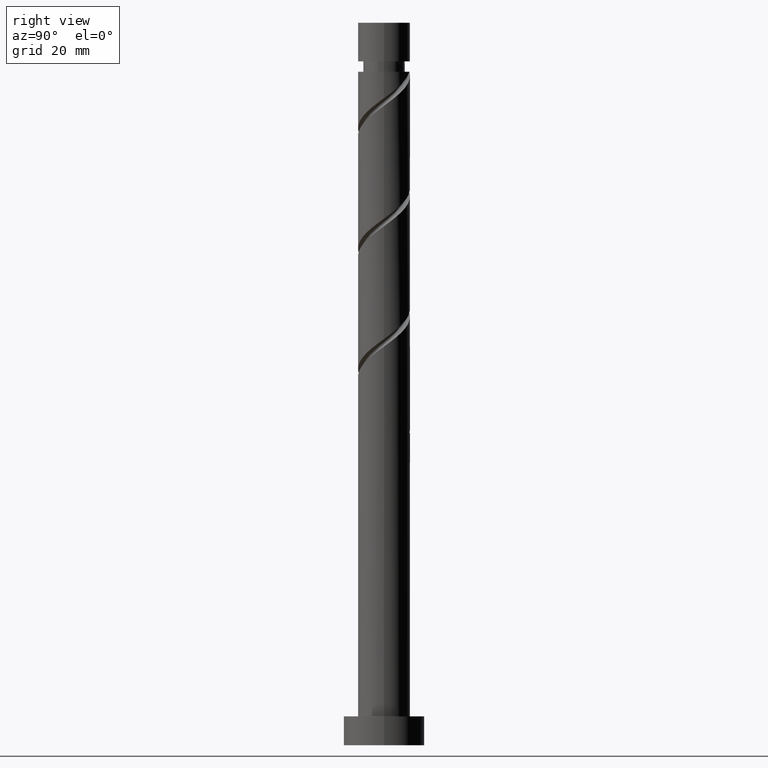
[diagram: clean part render]
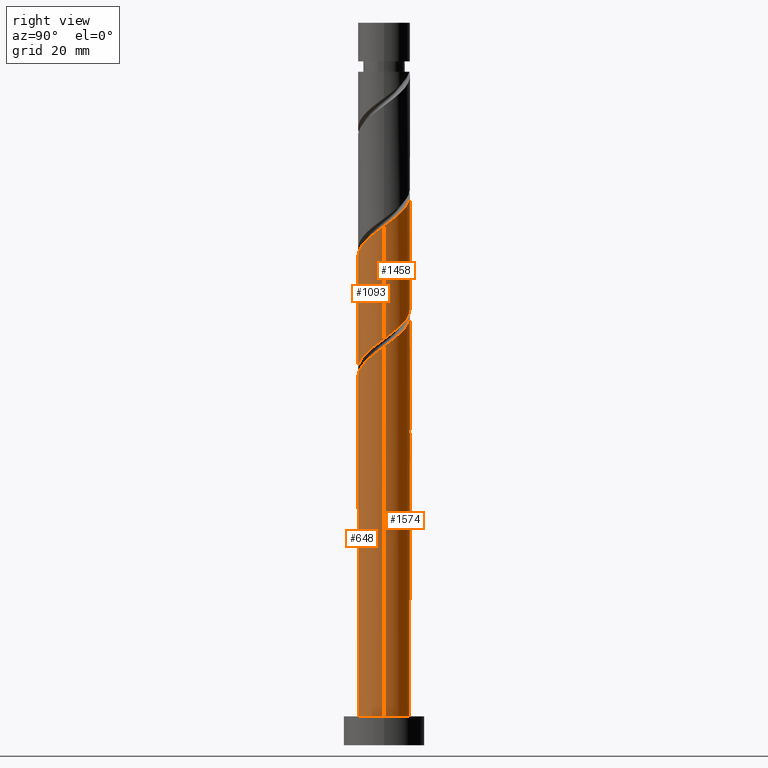
[diagram: same view with one multi-face feature highlighted, each face labeled with its STEP entity id]
A machine part, right view. The highlighted faces form ONE feature: a constant-radius fillet chain: 4 tangent blend faces with common blend radius 4.5 mm. The faces share edges in the B-rep.
Their STEP definitions:
[1] entity #1458 (Cylinder):
#29 = CARTESIAN_POINT ( 'NONE',  ( -4.094119992766323435, 1.867667391381863329, 98.80672177963353420 ) ) ;
#38 = ORIENTED_EDGE ( 'NONE', *, *, #1354, .F. ) ;
#82 = CARTESIAN_POINT ( 'NONE',  ( 1.593964075227163102, 4.268168524479527548, 74.32755511296680595 ) ) ;
#132 = CARTESIAN_POINT ( 'NONE',  ( -4.499999999999999112, 4.647861862793815006E-15, 80.72152422110376335 ) ) ;
#144 = CARTESIAN_POINT ( 'NONE',  ( -4.470880461391601557, 0.5111045880706612810, 99.84838844630017718 ) ) ;
#158 = CARTESIAN_POINT ( 'NONE',  ( -3.041409897620717562, 3.316598533837753049, 77.97338844630017718 ) ) ;
#173 = CARTESIAN_POINT ( 'NONE',  ( 4.500000000000005329, 2.998620556641154609E-15, 89.80858600482991960 ) ) ;
#176 = CARTESIAN_POINT ( 'NONE',  ( 0.8954886933959584905, 4.410000000000001030, 74.84838844630019139 ) ) ;
#229 = CARTESIAN_POINT ( 'NONE',  ( -4.500000000000005329, -1.289406839355696237E-15, 100.2252526714965768 ) ) ;
#243 = LINE ( 'NONE', #959, #1215 ) ;
#253 = CARTESIAN_POINT ( 'NONE',  ( -2.214425302316378463, 3.917438012331664776, 96.72338844630019139 ) ) ;
#260 = CARTESIAN_POINT ( 'NONE',  ( 3.917438012331664776, 2.214425302316378019, 91.51505511296684858 ) ) ;
#276 = CARTESIAN_POINT ( 'NONE',  ( -4.500000000000000000, 0.4522670168666474422, 80.38721964569590739 ) ) ;
#287 = CARTESIAN_POINT ( 'NONE',  ( 2.214425302316377575, 3.917438012331659447, 73.80672177963351999 ) ) ;
#316 = ORIENTED_EDGE ( 'NONE', *, *, #949, .F. ) ;
#321 = CARTESIAN_POINT ( 'NONE',  ( 3.798310538269914272, 2.516112295057646886, 72.24422177963349156 ) ) ;
#335 = CARTESIAN_POINT ( 'NONE',  ( 3.041409897620723335, 3.316598533837756158, 92.55672177963347735 ) ) ;
#338 = FACE_OUTER_BOUND ( 'NONE', #555, .T. ) ;
#352 = AXIS2_PLACEMENT_3D ( 'NONE', #1310, #1205, #1199 ) ;
#358 = DIRECTION ( 'NONE',  ( -0.000000000000000000, -0.000000000000000000, -1.000000000000000000 ) ) ;
#379 = CARTESIAN_POINT ( 'NONE',  ( 4.410000000000006359, 0.8954886933959571582, 90.47338844630019139 ) ) ;
#408 = CARTESIAN_POINT ( 'NONE',  ( -4.410000000000001030, 0.8954886933959577133, 80.05672177963350578 ) ) ;
#425 = VERTEX_POINT ( 'NONE', #229 ) ;
#435 = ORIENTED_EDGE ( 'NONE', *, *, #1389, .T. ) ;
#443 = CARTESIAN_POINT ( 'NONE',  ( 3.316598533837753049, 3.041409897620717562, 72.76505511296684858 ) ) ;
#501 = CARTESIAN_POINT ( 'NONE',  ( 4.500000000000004441, 0.4522670168666463875, 90.14289058023777557 ) ) ;
#504 = CARTESIAN_POINT ( 'NONE',  ( -4.389929447262725937, 1.219222487706074221, 99.32755511296684858 ) ) ;
#523 = CARTESIAN_POINT ( 'NONE',  ( -1.593964075227163768, 4.268168524479535542, 96.20255511296682016 ) ) ;
#541 = CARTESIAN_POINT ( 'NONE',  ( -0.5111045880706599487, 4.470880461391593563, 75.89005511296686279 ) ) ;
#555 = EDGE_LOOP ( 'NONE', ( #316, #435, #38, #1267 ) ) ;
#557 = EDGE_CURVE ( 'NONE', #425, #818, #243, .T. ) ;
#579 = CARTESIAN_POINT ( 'NONE',  ( 4.500000000000000000, 5.510910596163088569E-16, 125.0000000000000000 ) ) ;
#585 = CARTESIAN_POINT ( 'NONE',  ( -3.917438012331659447, 2.214425302316376687, 79.01505511296682016 ) ) ;
#628 = CARTESIAN_POINT ( 'NONE',  ( -0.8954886933959569362, 4.410000000000006359, 95.68172177963350578 ) ) ;
#653 = CARTESIAN_POINT ( 'NONE',  ( 4.389929447262719719, 1.219222487706071112, 71.20255511296682016 ) ) ;
#704 = CARTESIAN_POINT ( 'NONE',  ( -4.499999999999999112, 4.647861862793815006E-15, 80.72152422110376335 ) ) ;
#751 = CARTESIAN_POINT ( 'NONE',  ( 3.566707500183794455, 2.834886529405591826, 92.03588844630014876 ) ) ;
#818 = VERTEX_POINT ( 'NONE', #132 ) ;
#825 = CARTESIAN_POINT ( 'NONE',  ( 2.516112295057652659, 3.798310538269918712, 93.07755511296683437 ) ) ;
#830 = CYLINDRICAL_SURFACE ( 'NONE', #352, 4.500000000000000000 ) ;
#870 = CARTESIAN_POINT ( 'NONE',  ( 4.268168524479535542, 1.593964075227162658, 90.99422177963353420 ) ) ;
#932 = CARTESIAN_POINT ( 'NONE',  ( 4.094119992766318106, 1.867667391381859554, 71.72338844630016297 ) ) ;
#949 = EDGE_CURVE ( 'NONE', #1009, #425, #1201, .T. ) ;
#959 = CARTESIAN_POINT ( 'NONE',  ( -4.500000000000000000, 0.000000000000000000, 125.0000000000000000 ) ) ;
#976 =( BOUNDED_CURVE ( )  B_SPLINE_CURVE ( 2, ( #704, #276, #408, #1293, #585, #1138, #158, #1247, #1257, #1530, #541, #1018, #176, #82, #287, #1055, #443, #321, #932, #653, #1360, #1411, #1131 ),
 .UNSPECIFIED., .F., .T. ) 
 B_SPLINE_CURVE_WITH_KNOTS ( ( 3, 2, 2, 2, 2, 2, 2, 2, 2, 2, 2, 3 ),
 ( 0.6795322023138552492, 0.6875000000000000000, 0.6999999999999999556, 0.7125000000000000222, 0.7249999999999999778, 0.7375000000000000444, 0.7500000000000000000, 0.7624999999999999556, 0.7750000000000000222, 0.7874999999999999778, 0.8000000000000000444, 0.8045322023138551382 ),
 .UNSPECIFIED. ) 
 CURVE ( )  GEOMETRIC_REPRESENTATION_ITEM ( )  RATIONAL_B_SPLINE_CURVE ( ( 0.9039174447099320719, 0.9019565955404615920, 0.9090909090909098378, 0.8978984914501261239, 0.9090909090909098378, 0.8978984914501261239, 0.9090909090909098378, 0.8978984914501261239, 0.9090909090909098378, 0.8978984914501261239, 0.9090909090909098378, 0.8978984914501261239, 0.9090909090909098378, 0.8978984914501261239, 0.9090909090909098378, 0.8978984914501261239, 0.9090909090909098378, 0.8978984914501261239, 0.9090909090909098378, 0.8978984914501261239, 0.9090909090909098378, 0.9050328050005744807, 0.9039174447099322940 ) ) 
 REPRESENTATION_ITEM ( '' )  );
#990 = CARTESIAN_POINT ( 'NONE',  ( 4.499999999999999112, -5.307558385254872381E-15, 70.30485755443710616 ) ) ;
#1009 = VERTEX_POINT ( 'NONE', #1448 ) ;
#1018 = CARTESIAN_POINT ( 'NONE',  ( 0.1970133115647524913, 4.551831475520468295, 75.36922177963350578 ) ) ;
#1047 = DIRECTION ( 'NONE',  ( -0.000000000000000000, -0.000000000000000000, -1.000000000000000000 ) ) ;
#1055 = CARTESIAN_POINT ( 'NONE',  ( 2.834886529405589606, 3.566707500183787349, 73.28588844630016297 ) ) ;
#1112 = CARTESIAN_POINT ( 'NONE',  ( -4.500000000000005329, 0.2563818185089596913, 100.0357415822893046 ) ) ;
#1123 = CARTESIAN_POINT ( 'NONE',  ( -0.1970133115647508815, 4.551831475520473624, 95.16088844630019139 ) ) ;
#1131 = CARTESIAN_POINT ( 'NONE',  ( 4.499999999999999112, -5.307558385254872381E-15, 70.30485755443710616 ) ) ;
#1138 = CARTESIAN_POINT ( 'NONE',  ( -3.566707500183787793, 2.834886529405589162, 78.49422177963349156 ) ) ;
#1177 = VERTEX_POINT ( 'NONE', #990 ) ;
#1183 = LINE ( 'NONE', #579, #1394 ) ;
#1199 = DIRECTION ( 'NONE',  ( -1.000000000000000000, 0.000000000000000000, 0.000000000000000000 ) ) ;
#1201 =( BOUNDED_CURVE ( )  B_SPLINE_CURVE ( 2, ( #173, #501, #379, #870, #260, #751, #335, #825, #1307, #1492, #1465, #1123, #628, #523, #253, #1347, #1233, #1227, #29, #504, #144, #1112, #1486 ),
 .UNSPECIFIED., .F., .T. ) 
 B_SPLINE_CURVE_WITH_KNOTS ( ( 3, 2, 2, 2, 2, 2, 2, 2, 2, 2, 2, 3 ),
 ( 0.4295322023138552492, 0.4375000000000000000, 0.4499999999999999556, 0.4625000000000000222, 0.4749999999999999778, 0.4875000000000000444, 0.5000000000000000000, 0.5124999999999999556, 0.5250000000000000222, 0.5374999999999999778, 0.5500000000000000444, 0.5545322023138550271 ),
 .UNSPECIFIED. ) 
 CURVE ( )  GEOMETRIC_REPRESENTATION_ITEM ( )  RATIONAL_B_SPLINE_CURVE ( ( 0.9039174447099369569, 0.9019565955404662549, 0.9090909090909147228, 0.8978984914501307868, 0.9090909090909147228, 0.8978984914501307868, 0.9090909090909147228, 0.8978984914501307868, 0.9090909090909147228, 0.8978984914501307868, 0.9090909090909147228, 0.8978984914501307868, 0.9090909090909147228, 0.8978984914501307868, 0.9090909090909147228, 0.8978984914501307868, 0.9090909090909147228, 0.8978984914501307868, 0.9090909090909147228, 0.8978984914501307868, 0.9090909090909147228, 0.9050328050005792546, 0.9039174447099370679 ) ) 
 REPRESENTATION_ITEM ( '' )  );
#1205 = DIRECTION ( 'NONE',  ( -0.000000000000000000, -0.000000000000000000, -1.000000000000000000 ) ) ;
#1215 = VECTOR ( 'NONE', #358, 1000.000000000000000 ) ;
#1227 = CARTESIAN_POINT ( 'NONE',  ( -3.798310538269919157, 2.516112295057651327, 98.28588844630014876 ) ) ;
#1233 = CARTESIAN_POINT ( 'NONE',  ( -3.316598533837757046, 3.041409897620722447, 97.76505511296682016 ) ) ;
#1247 = CARTESIAN_POINT ( 'NONE',  ( -2.516112295057647774, 3.798310538269914272, 77.45255511296684858 ) ) ;
#1257 = CARTESIAN_POINT ( 'NONE',  ( -1.867667391381860220, 4.094119992766318106, 76.93172177963350578 ) ) ;
#1267 = ORIENTED_EDGE ( 'NONE', *, *, #557, .F. ) ;
#1293 = CARTESIAN_POINT ( 'NONE',  ( -4.268168524479529324, 1.593964075227162214, 79.53588844630014876 ) ) ;
#1307 = CARTESIAN_POINT ( 'NONE',  ( 1.867667391381863773, 4.094119992766323435, 93.59838844630019139 ) ) ;
#1310 = CARTESIAN_POINT ( 'NONE',  ( 0.000000000000000000, 0.000000000000000000, 125.0000000000000000 ) ) ;
#1347 = CARTESIAN_POINT ( 'NONE',  ( -2.834886529405591826, 3.566707500183793567, 97.24422177963351999 ) ) ;
#1354 = EDGE_CURVE ( 'NONE', #818, #1177, #976, .T. ) ;
#1360 = CARTESIAN_POINT ( 'NONE',  ( 4.470880461391593563, 0.5111045880706588385, 70.68172177963350578 ) ) ;
#1389 = EDGE_CURVE ( 'NONE', #1009, #1177, #1183, .T. ) ;
#1394 = VECTOR ( 'NONE', #1047, 1000.000000000000000 ) ;
#1411 = CARTESIAN_POINT ( 'NONE',  ( 4.499999999999997335, 0.2563818185089513091, 70.49436864364436417 ) ) ;
#1448 = CARTESIAN_POINT ( 'NONE',  ( 4.500000000000005329, 2.998620556641154215E-15, 89.80858600482991960 ) ) ;
#1458 = ADVANCED_FACE ( 'NONE', ( #338 ), #830, .T. ) ;
#1465 = CARTESIAN_POINT ( 'NONE',  ( 0.5111045880706623912, 4.470880461391601557, 94.64005511296683437 ) ) ;
#1486 = CARTESIAN_POINT ( 'NONE',  ( -4.500000000000005329, -1.289406839355696237E-15, 100.2252526714965768 ) ) ;
#1492 = CARTESIAN_POINT ( 'NONE',  ( 1.219222487706075109, 4.389929447262725937, 94.11922177963350578 ) ) ;
#1530 = CARTESIAN_POINT ( 'NONE',  ( -1.219222487706071778, 4.389929447262719719, 76.41088844630016297 ) ) ;
[2] entity #1093 (Cylinder):
#6 = CARTESIAN_POINT ( 'NONE',  ( 1.593964075227163102, -4.268168524479535542, 85.78588844630017718 ) ) ;
#25 = CARTESIAN_POINT ( 'NONE',  ( 3.316598533837756602, -3.041409897620722447, 87.34838844630019139 ) ) ;
#97 = CARTESIAN_POINT ( 'NONE',  ( 4.500000000000000888, -0.4522670168666418911, 69.97055297902925020 ) ) ;
#113 = CARTESIAN_POINT ( 'NONE',  ( -4.499999999999999112, 4.647861862793815006E-15, 59.88819088777042765 ) ) ;
#133 = CARTESIAN_POINT ( 'NONE',  ( -3.041409897620722447, -3.316598533837756602, 82.14005511296683437 ) ) ;
#149 = CARTESIAN_POINT ( 'NONE',  ( 0.8954886933959574913, -4.410000000000006359, 85.26505511296683437 ) ) ;
#164 = CARTESIAN_POINT ( 'NONE',  ( -4.268168524479535542, -1.593964075227163324, 80.57755511296683437 ) ) ;
#167 = VERTEX_POINT ( 'NONE', #744 ) ;
#194 = EDGE_CURVE ( 'NONE', #167, #1260, #1509, .T. ) ;
#226 = CARTESIAN_POINT ( 'NONE',  ( 1.867667391381859776, -4.094119992766318106, 66.51505511296684858 ) ) ;
#234 = CARTESIAN_POINT ( 'NONE',  ( -3.798310538269913383, -2.516112295057647774, 61.82755511296681306 ) ) ;
#241 = CARTESIAN_POINT ( 'NONE',  ( 3.041409897620717562, -3.316598533837753049, 67.55672177963351999 ) ) ;
#250 = CARTESIAN_POINT ( 'NONE',  ( -3.566707500183793567, -2.834886529405591826, 81.61922177963350578 ) ) ;
#273 = CARTESIAN_POINT ( 'NONE',  ( 2.214425302316378019, -3.917438012331664776, 86.30672177963350578 ) ) ;
#297 = CARTESIAN_POINT ( 'NONE',  ( 4.499999999999999112, -5.307558385254872381E-15, 70.30485755443710616 ) ) ;
#314 = CARTESIAN_POINT ( 'NONE',  ( 0.000000000000000000, 0.000000000000000000, 125.0000000000000000 ) ) ;
#325 = AXIS2_PLACEMENT_3D ( 'NONE', #314, #1236, #1357 ) ;
#333 = ORIENTED_EDGE ( 'NONE', *, *, #194, .T. ) ;
#345 = CARTESIAN_POINT ( 'NONE',  ( -3.316598533837753049, -3.041409897620717562, 62.34838844630017007 ) ) ;
#380 = CARTESIAN_POINT ( 'NONE',  ( 4.500000000000005329, 2.998620556641154609E-15, 89.80858600482991960 ) ) ;
#423 = ORIENTED_EDGE ( 'NONE', *, *, #685, .F. ) ;
#453 = VECTOR ( 'NONE', #1363, 1000.000000000000000 ) ;
#467 = CARTESIAN_POINT ( 'NONE',  ( -1.593964075227162214, -4.268168524479527548, 63.91088844630014165 ) ) ;
#492 = CARTESIAN_POINT ( 'NONE',  ( -2.834886529405589606, -3.566707500183787793, 62.86922177963347025 ) ) ;
#495 = CARTESIAN_POINT ( 'NONE',  ( -1.219222487706074887, -4.389929447262725937, 83.70255511296683437 ) ) ;
#502 = CARTESIAN_POINT ( 'NONE',  ( 4.470880461391601557, -0.5111045880706617250, 89.43172177963350578 ) ) ;
#519 = CARTESIAN_POINT ( 'NONE',  ( 4.094119992766323435, -1.867667391381863551, 88.39005511296684858 ) ) ;
#579 = CARTESIAN_POINT ( 'NONE',  ( 4.500000000000000000, 5.510910596163088569E-16, 125.0000000000000000 ) ) ;
#595 = CARTESIAN_POINT ( 'NONE',  ( 4.410000000000001030, -0.8954886933959582684, 69.64005511296683437 ) ) ;
#609 = CARTESIAN_POINT ( 'NONE',  ( -0.8954886933959579354, -4.410000000000001030, 64.43172177963350578 ) ) ;
#616 = CARTESIAN_POINT ( 'NONE',  ( -2.214425302316376687, -3.917438012331659447, 63.39005511296683437 ) ) ;
#626 = CARTESIAN_POINT ( 'NONE',  ( -2.516112295057651771, -3.798310538269919157, 82.66088844630019139 ) ) ;
#651 =( BOUNDED_CURVE ( )  B_SPLINE_CURVE ( 2, ( #297, #97, #595, #1063, #848, #1435, #241, #1549, #226, #944, #1425, #1189, #609, #467, #616, #492, #345, #234, #1091, #952, #838, #1080, #113 ),
 .UNSPECIFIED., .F., .T. ) 
 B_SPLINE_CURVE_WITH_KNOTS ( ( 3, 2, 2, 2, 2, 2, 2, 2, 2, 2, 2, 3 ),
 ( 0.8045322023138551382, 0.8125000000000000000, 0.8249999999999999556, 0.8375000000000000222, 0.8499999999999999778, 0.8625000000000000444, 0.8750000000000000000, 0.8874999999999999556, 0.9000000000000000222, 0.9124999999999999778, 0.9250000000000000444, 0.9295322023138552492 ),
 .UNSPECIFIED. ) 
 CURVE ( )  GEOMETRIC_REPRESENTATION_ITEM ( )  RATIONAL_B_SPLINE_CURVE ( ( 0.9039174447099322940, 0.9019565955404614810, 0.9090909090909098378, 0.8978984914501261239, 0.9090909090909098378, 0.8978984914501261239, 0.9090909090909098378, 0.8978984914501261239, 0.9090909090909098378, 0.8978984914501261239, 0.9090909090909098378, 0.8978984914501261239, 0.9090909090909098378, 0.8978984914501261239, 0.9090909090909098378, 0.8978984914501261239, 0.9090909090909098378, 0.8978984914501261239, 0.9090909090909098378, 0.8978984914501261239, 0.9090909090909098378, 0.9050328050005742586, 0.9039174447099320719 ) ) 
 REPRESENTATION_ITEM ( '' )  );
#685 = EDGE_CURVE ( 'NONE', #167, #1009, #1156, .T. ) ;
#744 = CARTESIAN_POINT ( 'NONE',  ( -4.500000000000005329, -3.568358462402973409E-15, 79.39191933816321978 ) ) ;
#752 = CARTESIAN_POINT ( 'NONE',  ( 2.834886529405591826, -3.566707500183793567, 86.82755511296682016 ) ) ;
#758 = CARTESIAN_POINT ( 'NONE',  ( 0.1970133115647514921, -4.551831475520473624, 84.74422177963350578 ) ) ;
#772 = CARTESIAN_POINT ( 'NONE',  ( -4.500000000000005329, -3.568358462402973409E-15, 79.39191933816321978 ) ) ;
#808 = CYLINDRICAL_SURFACE ( 'NONE', #325, 4.500000000000000000 ) ;
#838 = CARTESIAN_POINT ( 'NONE',  ( -4.470880461391593563, -0.5111045880706595046, 60.26505511296683437 ) ) ;
#848 = CARTESIAN_POINT ( 'NONE',  ( 3.917438012331659447, -2.214425302316376687, 68.59838844630019139 ) ) ;
#882 = CARTESIAN_POINT ( 'NONE',  ( -1.867667391381863551, -4.094119992766323435, 83.18172177963350578 ) ) ;
#886 = CARTESIAN_POINT ( 'NONE',  ( -4.500000000000000000, 0.000000000000000000, 125.0000000000000000 ) ) ;
#944 = CARTESIAN_POINT ( 'NONE',  ( 1.219222487706071112, -4.389929447262718831, 65.99422177963349156 ) ) ;
#952 = CARTESIAN_POINT ( 'NONE',  ( -4.389929447262719719, -1.219222487706071778, 60.78588844630015586 ) ) ;
#975 = CARTESIAN_POINT ( 'NONE',  ( 3.798310538269919157, -2.516112295057651771, 87.86922177963349156 ) ) ;
#990 = CARTESIAN_POINT ( 'NONE',  ( 4.499999999999999112, -5.307558385254872381E-15, 70.30485755443710616 ) ) ;
#1009 = VERTEX_POINT ( 'NONE', #1448 ) ;
#1047 = DIRECTION ( 'NONE',  ( -0.000000000000000000, -0.000000000000000000, -1.000000000000000000 ) ) ;
#1063 = CARTESIAN_POINT ( 'NONE',  ( 4.268168524479527548, -1.593964075227163102, 69.11922177963349156 ) ) ;
#1080 = CARTESIAN_POINT ( 'NONE',  ( -4.500000000000000000, -0.2563818185089456470, 60.07770197697771408 ) ) ;
#1091 = CARTESIAN_POINT ( 'NONE',  ( -4.094119992766318106, -1.867667391381859776, 61.30672177963350578 ) ) ;
#1093 = ADVANCED_FACE ( 'NONE', ( #1166 ), #808, .T. ) ;
#1101 = CARTESIAN_POINT ( 'NONE',  ( -0.5111045880706615030, -4.470880461391601557, 84.22338844630019139 ) ) ;
#1121 = CARTESIAN_POINT ( 'NONE',  ( -4.410000000000006359, -0.8954886933959577133, 80.05672177963349156 ) ) ;
#1156 =( BOUNDED_CURVE ( )  B_SPLINE_CURVE ( 2, ( #772, #1255, #1121, #164, #1483, #250, #133, #626, #882, #495, #1101, #758, #149, #6, #273, #752, #25, #975, #519, #1231, #502, #1470, #380 ),
 .UNSPECIFIED., .F., .T. ) 
 B_SPLINE_CURVE_WITH_KNOTS ( ( 3, 2, 2, 2, 2, 2, 2, 2, 2, 2, 2, 3 ),
 ( 0.3045322023138551937, 0.3125000000000000000, 0.3249999999999999556, 0.3375000000000000222, 0.3499999999999999778, 0.3625000000000000444, 0.3750000000000000000, 0.3874999999999999556, 0.4000000000000000222, 0.4124999999999999778, 0.4250000000000000444, 0.4295322023138552492 ),
 .UNSPECIFIED. ) 
 CURVE ( )  GEOMETRIC_REPRESENTATION_ITEM ( )  RATIONAL_B_SPLINE_CURVE ( ( 0.9039174447099369569, 0.9019565955404662549, 0.9090909090909147228, 0.8978984914501307868, 0.9090909090909147228, 0.8978984914501307868, 0.9090909090909147228, 0.8978984914501307868, 0.9090909090909147228, 0.8978984914501307868, 0.9090909090909147228, 0.8978984914501307868, 0.9090909090909147228, 0.8978984914501307868, 0.9090909090909147228, 0.8978984914501307868, 0.9090909090909147228, 0.8978984914501307868, 0.9090909090909147228, 0.8978984914501307868, 0.9090909090909147228, 0.9050328050005791436, 0.9039174447099369569 ) ) 
 REPRESENTATION_ITEM ( '' )  );
#1166 = FACE_OUTER_BOUND ( 'NONE', #1258, .T. ) ;
#1177 = VERTEX_POINT ( 'NONE', #990 ) ;
#1183 = LINE ( 'NONE', #579, #1394 ) ;
#1189 = CARTESIAN_POINT ( 'NONE',  ( -0.1970133115647529909, -4.551831475520468295, 64.95255511296682016 ) ) ;
#1231 = CARTESIAN_POINT ( 'NONE',  ( 4.389929447262725937, -1.219222487706074887, 88.91088844630016297 ) ) ;
#1236 = DIRECTION ( 'NONE',  ( -0.000000000000000000, -0.000000000000000000, -1.000000000000000000 ) ) ;
#1255 = CARTESIAN_POINT ( 'NONE',  ( -4.500000000000006217, -0.4522670168666438895, 79.72622391357106153 ) ) ;
#1258 = EDGE_LOOP ( 'NONE', ( #1382, #423, #333, #1553 ) ) ;
#1260 = VERTEX_POINT ( 'NONE', #1266 ) ;
#1266 = CARTESIAN_POINT ( 'NONE',  ( -4.499999999999999112, 4.647861862793815006E-15, 59.88819088777042765 ) ) ;
#1357 = DIRECTION ( 'NONE',  ( -1.000000000000000000, 0.000000000000000000, 0.000000000000000000 ) ) ;
#1363 = DIRECTION ( 'NONE',  ( -0.000000000000000000, -0.000000000000000000, -1.000000000000000000 ) ) ;
#1382 = ORIENTED_EDGE ( 'NONE', *, *, #1389, .F. ) ;
#1389 = EDGE_CURVE ( 'NONE', #1009, #1177, #1183, .T. ) ;
#1394 = VECTOR ( 'NONE', #1047, 1000.000000000000000 ) ;
#1425 = CARTESIAN_POINT ( 'NONE',  ( 0.5111045880706592826, -4.470880461391593563, 65.47338844630017718 ) ) ;
#1429 = EDGE_CURVE ( 'NONE', #1177, #1260, #651, .T. ) ;
#1435 = CARTESIAN_POINT ( 'NONE',  ( 3.566707500183787793, -2.834886529405589606, 68.07755511296683437 ) ) ;
#1448 = CARTESIAN_POINT ( 'NONE',  ( 4.500000000000005329, 2.998620556641154215E-15, 89.80858600482991960 ) ) ;
#1470 = CARTESIAN_POINT ( 'NONE',  ( 4.500000000000005329, -0.2563818185089476454, 89.61907491562263317 ) ) ;
#1483 = CARTESIAN_POINT ( 'NONE',  ( -3.917438012331664776, -2.214425302316378019, 81.09838844630017718 ) ) ;
#1509 = LINE ( 'NONE', #886, #453 ) ;
#1549 = CARTESIAN_POINT ( 'NONE',  ( 2.516112295057647774, -3.798310538269914716, 67.03588844630014876 ) ) ;
#1553 = ORIENTED_EDGE ( 'NONE', *, *, #1429, .F. ) ;
[3] entity #1574 (Cylinder):
#5 = DIRECTION ( 'NONE',  ( -1.000000000000000000, 0.000000000000000000, 0.000000000000000000 ) ) ;
#16 = LINE ( 'NONE', #508, #1057 ) ;
#24 = DIRECTION ( 'NONE',  ( -0.000000000000000000, -0.000000000000000000, -1.000000000000000000 ) ) ;
#26 =( BOUNDED_CURVE ( )  B_SPLINE_CURVE ( 2, ( #90, #587, #1056, #1428, #620, #235, #604, #1544, #1311, #1200, #486, #340, #966 ),
 .UNSPECIFIED., .F., .T. ) 
 B_SPLINE_CURVE_WITH_KNOTS ( ( 3, 2, 2, 2, 2, 2, 3 ),
 ( 0.9295322023138552492, 0.9375000000000000000, 0.9499999999999999556, 0.9625000000000000222, 0.9749999999999999778, 0.9875000000000000444, 1.000000000000000000 ),
 .UNSPECIFIED. ) 
 CURVE ( )  GEOMETRIC_REPRESENTATION_ITEM ( )  RATIONAL_B_SPLINE_CURVE ( ( 0.9039174447099320719, 0.9019565955404615920, 0.9090909090909098378, 0.8978984914501261239, 0.9090909090909098378, 0.8978984914501261239, 0.9090909090909098378, 0.8978984914501261239, 0.9090909090909098378, 0.8978984914501261239, 0.9090909090909098378, 0.8978984914501261239, 0.9090909090909098378 ) ) 
 REPRESENTATION_ITEM ( '' )  );
#34 = CARTESIAN_POINT ( 'NONE',  ( -0.1970133115647508815, 4.551831475520473624, 74.32755511296683437 ) ) ;
#35 = DIRECTION ( 'NONE',  ( -0.000000000000000000, -0.000000000000000000, -1.000000000000000000 ) ) ;
#41 = EDGE_CURVE ( 'NONE', #165, #829, #865, .T. ) ;
#61 = CARTESIAN_POINT ( 'NONE',  ( 3.917438012331664776, 2.214425302316378019, 70.68172177963350578 ) ) ;
#69 = CARTESIAN_POINT ( 'NONE',  ( -2.834886529405591826, 3.566707500183793567, 76.41088844630017718 ) ) ;
#80 = EDGE_LOOP ( 'NONE', ( #583, #542, #402, #266, #1300, #767, #457, #104 ) ) ;
#90 = CARTESIAN_POINT ( 'NONE',  ( -4.499999999999999112, 4.647861862793815006E-15, 59.88819088777042765 ) ) ;
#102 =( BOUNDED_CURVE ( )  B_SPLINE_CURVE ( 2, ( #1556, #965, #364, #1443, #855, #355, #1324, #1572, #735, #1318, #1210 ),
 .UNSPECIFIED., .F., .T. ) 
 B_SPLINE_CURVE_WITH_KNOTS ( ( 3, 2, 2, 2, 2, 3 ),
 ( 0.000000000000000000, 0.01249999999999995386, 0.02500000000000002220, 0.03749999999999997780, 0.05000000000000004441, 0.05453220231385517286 ),
 .UNSPECIFIED. ) 
 CURVE ( )  GEOMETRIC_REPRESENTATION_ITEM ( )  RATIONAL_B_SPLINE_CURVE ( ( 0.9090909090909147228, 0.8978984914501307868, 0.9090909090909147228, 0.8978984914501307868, 0.9090909090909147228, 0.8978984914501307868, 0.9090909090909147228, 0.8978984914501307868, 0.9090909090909147228, 0.9050328050005792546, 0.9039174447099371790 ) ) 
 REPRESENTATION_ITEM ( '' )  );
#104 = ORIENTED_EDGE ( 'NONE', *, *, #194, .F. ) ;
#145 = EDGE_CURVE ( 'NONE', #710, #576, #16, .T. ) ;
#157 = DIRECTION ( 'NONE',  ( -1.711937728344210659E-30, -3.854941057726241844E-15, -1.000000000000000000 ) ) ;
#165 = VERTEX_POINT ( 'NONE', #869 ) ;
#167 = VERTEX_POINT ( 'NONE', #744 ) ;
#194 = EDGE_CURVE ( 'NONE', #167, #1260, #1509, .T. ) ;
#228 = CARTESIAN_POINT ( 'NONE',  ( -4.500000000000000000, 0.000000000000000000, 5.000000000000000000 ) ) ;
#235 = CARTESIAN_POINT ( 'NONE',  ( -3.566707500183787793, 2.834886529405589162, 57.66088844630015586 ) ) ;
#266 = ORIENTED_EDGE ( 'NONE', *, *, #652, .F. ) ;
#301 = CARTESIAN_POINT ( 'NONE',  ( 4.410000000000006359, 0.8954886933959571582, 69.64005511296686279 ) ) ;
#307 = VECTOR ( 'NONE', #35, 1000.000000000000000 ) ;
#340 = CARTESIAN_POINT ( 'NONE',  ( 0.1970133115647524913, 4.551831475520468295, 54.53588844630014876 ) ) ;
#347 = DIRECTION ( 'NONE',  ( 0.000000000000000000, 0.000000000000000000, 1.000000000000000000 ) ) ;
#355 = CARTESIAN_POINT ( 'NONE',  ( -3.798310538269919157, 2.516112295057651327, 56.61922177963349156 ) ) ;
#364 = CARTESIAN_POINT ( 'NONE',  ( -2.214425302316378463, 3.917438012331664776, 55.05672177963351288 ) ) ;
#390 = CARTESIAN_POINT ( 'NONE',  ( 0.8954886933959583795, 4.409999999999999254, 54.01505511296683437 ) ) ;
#393 =( BOUNDED_CURVE ( )  B_SPLINE_CURVE ( 2, ( #1155, #413, #301, #1395, #61, #1376, #659, #565, #1367, #559, #798, #34, #1029, #1278, #1512, #69, #1129, #527, #668, #853, #422, #1399, #1139 ),
 .UNSPECIFIED., .F., .T. ) 
 B_SPLINE_CURVE_WITH_KNOTS ( ( 3, 2, 2, 2, 2, 2, 2, 2, 2, 2, 2, 3 ),
 ( 0.1795322023138552214, 0.1875000000000000000, 0.1999999999999999556, 0.2125000000000000222, 0.2249999999999999778, 0.2375000000000000444, 0.2500000000000000000, 0.2624999999999999556, 0.2750000000000000222, 0.2874999999999999778, 0.3000000000000000444, 0.3045322023138551937 ),
 .UNSPECIFIED. ) 
 CURVE ( )  GEOMETRIC_REPRESENTATION_ITEM ( )  RATIONAL_B_SPLINE_CURVE ( ( 0.9039174447099369569, 0.9019565955404662549, 0.9090909090909147228, 0.8978984914501307868, 0.9090909090909147228, 0.8978984914501307868, 0.9090909090909147228, 0.8978984914501307868, 0.9090909090909147228, 0.8978984914501307868, 0.9090909090909147228, 0.8978984914501307868, 0.9090909090909147228, 0.8978984914501307868, 0.9090909090909147228, 0.8978984914501307868, 0.9090909090909147228, 0.8978984914501307868, 0.9090909090909147228, 0.8978984914501307868, 0.9090909090909147228, 0.9050328050005791436, 0.9039174447099369569 ) ) 
 REPRESENTATION_ITEM ( '' )  );
#402 = ORIENTED_EDGE ( 'NONE', *, *, #630, .T. ) ;
#413 = CARTESIAN_POINT ( 'NONE',  ( 4.500000000000004441, 0.4522670168666448887, 69.30955724690441855 ) ) ;
#422 = CARTESIAN_POINT ( 'NONE',  ( -4.470880461391601557, 0.5111045880706612810, 79.01505511296686279 ) ) ;
#453 = VECTOR ( 'NONE', #1363, 1000.000000000000000 ) ;
#457 = ORIENTED_EDGE ( 'NONE', *, *, #464, .F. ) ;
#464 = EDGE_CURVE ( 'NONE', #1260, #829, #26, .T. ) ;
#486 = CARTESIAN_POINT ( 'NONE',  ( -0.5111045880706599487, 4.470880461391593563, 55.05672177963350578 ) ) ;
#508 = CARTESIAN_POINT ( 'NONE',  ( 4.500000000000000000, 5.510910596163088569E-16, 125.0000000000000000 ) ) ;
#527 = CARTESIAN_POINT ( 'NONE',  ( -3.798310538269919157, 2.516112295057651327, 77.45255511296683437 ) ) ;
#542 = ORIENTED_EDGE ( 'NONE', *, *, #145, .T. ) ;
#559 = CARTESIAN_POINT ( 'NONE',  ( 1.219222487706075109, 4.389929447262725937, 73.28588844630017718 ) ) ;
#565 = CARTESIAN_POINT ( 'NONE',  ( 2.516112295057652659, 3.798310538269918712, 72.24422177963349156 ) ) ;
#576 = VERTEX_POINT ( 'NONE', #953 ) ;
#583 = ORIENTED_EDGE ( 'NONE', *, *, #833, .F. ) ;
#587 = CARTESIAN_POINT ( 'NONE',  ( -4.500000000000000000, 0.4522670168666474422, 59.55388631236257169 ) ) ;
#604 = CARTESIAN_POINT ( 'NONE',  ( -3.041409897620717562, 3.316598533837753049, 57.14005511296684858 ) ) ;
#619 = AXIS2_PLACEMENT_3D ( 'NONE', #1246, #157, #1379 ) ;
#620 = CARTESIAN_POINT ( 'NONE',  ( -3.917438012331659447, 2.214425302316376687, 58.18172177963350578 ) ) ;
#625 = CARTESIAN_POINT ( 'NONE',  ( 0.000000000000000000, 0.000000000000000000, 125.0000000000000000 ) ) ;
#630 = EDGE_CURVE ( 'NONE', #576, #916, #1415, .T. ) ;
#652 = EDGE_CURVE ( 'NONE', #1445, #916, #1463, .T. ) ;
#659 = CARTESIAN_POINT ( 'NONE',  ( 3.041409897620723335, 3.316598533837756158, 71.72338844630017718 ) ) ;
#668 = CARTESIAN_POINT ( 'NONE',  ( -4.094119992766323435, 1.867667391381863329, 77.97338844630016297 ) ) ;
#710 = VERTEX_POINT ( 'NONE', #992 ) ;
#729 = CARTESIAN_POINT ( 'NONE',  ( -4.500000000000005329, -3.568358462402973409E-15, 58.55858600482990539 ) ) ;
#735 = CARTESIAN_POINT ( 'NONE',  ( -4.470880461391601557, 0.5111045880706612810, 58.18172177963351288 ) ) ;
#743 = CYLINDRICAL_SURFACE ( 'NONE', #1362, 4.500000000000000000 ) ;
#744 = CARTESIAN_POINT ( 'NONE',  ( -4.500000000000005329, -3.568358462402973409E-15, 79.39191933816321978 ) ) ;
#767 = ORIENTED_EDGE ( 'NONE', *, *, #41, .T. ) ;
#798 = CARTESIAN_POINT ( 'NONE',  ( 0.5111045880706623912, 4.470880461391601557, 73.80672177963351999 ) ) ;
#829 = VERTEX_POINT ( 'NONE', #390 ) ;
#833 = EDGE_CURVE ( 'NONE', #710, #167, #393, .T. ) ;
#853 = CARTESIAN_POINT ( 'NONE',  ( -4.389929447262725937, 1.219222487706074221, 78.49422177963350578 ) ) ;
#855 = CARTESIAN_POINT ( 'NONE',  ( -3.316598533837757046, 3.041409897620722447, 56.09838844630018428 ) ) ;
#865 = CIRCLE ( 'NONE', #619, 4.500000000000000000 ) ;
#869 = CARTESIAN_POINT ( 'NONE',  ( -0.8954886933959569362, 4.410000000000006359, 54.01505511296683437 ) ) ;
#886 = CARTESIAN_POINT ( 'NONE',  ( -4.500000000000000000, 0.000000000000000000, 125.0000000000000000 ) ) ;
#916 = VERTEX_POINT ( 'NONE', #228 ) ;
#938 = DIRECTION ( 'NONE',  ( 1.000000000000000000, 0.000000000000000000, 0.000000000000000000 ) ) ;
#939 = AXIS2_PLACEMENT_3D ( 'NONE', #1437, #347, #938 ) ;
#953 = CARTESIAN_POINT ( 'NONE',  ( 4.500000000000000000, 5.510910596163088569E-16, 5.000000000000000000 ) ) ;
#965 = CARTESIAN_POINT ( 'NONE',  ( -1.593964075227163768, 4.268168524479535542, 54.53588844630016297 ) ) ;
#966 = CARTESIAN_POINT ( 'NONE',  ( 0.8954886933959583795, 4.409999999999999254, 54.01505511296683437 ) ) ;
#983 = CARTESIAN_POINT ( 'NONE',  ( -4.500000000000000000, 0.000000000000000000, 125.0000000000000000 ) ) ;
#992 = CARTESIAN_POINT ( 'NONE',  ( 4.500000000000005329, 2.998620556641154215E-15, 68.97525267149656258 ) ) ;
#1029 = CARTESIAN_POINT ( 'NONE',  ( -0.8954886933959569362, 4.410000000000006359, 74.84838844630016297 ) ) ;
#1056 = CARTESIAN_POINT ( 'NONE',  ( -4.410000000000001030, 0.8954886933959577133, 59.22338844630016297 ) ) ;
#1057 = VECTOR ( 'NONE', #24, 1000.000000000000000 ) ;
#1100 = DIRECTION ( 'NONE',  ( -0.000000000000000000, -0.000000000000000000, -1.000000000000000000 ) ) ;
#1129 = CARTESIAN_POINT ( 'NONE',  ( -3.316598533837757046, 3.041409897620722447, 76.93172177963350578 ) ) ;
#1139 = CARTESIAN_POINT ( 'NONE',  ( -4.500000000000005329, -3.568358462402973409E-15, 79.39191933816321978 ) ) ;
#1155 = CARTESIAN_POINT ( 'NONE',  ( 4.500000000000005329, 2.998620556641154609E-15, 68.97525267149656258 ) ) ;
#1200 = CARTESIAN_POINT ( 'NONE',  ( -1.219222487706071778, 4.389929447262719719, 55.57755511296682016 ) ) ;
#1210 = CARTESIAN_POINT ( 'NONE',  ( -4.500000000000005329, -3.568358462402973409E-15, 58.55858600482990539 ) ) ;
#1246 = CARTESIAN_POINT ( 'NONE',  ( 0.000000000000000000, 0.000000000000000000, 54.01505511296684858 ) ) ;
#1260 = VERTEX_POINT ( 'NONE', #1266 ) ;
#1266 = CARTESIAN_POINT ( 'NONE',  ( -4.499999999999999112, 4.647861862793815006E-15, 59.88819088777042765 ) ) ;
#1278 = CARTESIAN_POINT ( 'NONE',  ( -1.593964075227163768, 4.268168524479535542, 75.36922177963350578 ) ) ;
#1300 = ORIENTED_EDGE ( 'NONE', *, *, #1554, .F. ) ;
#1311 = CARTESIAN_POINT ( 'NONE',  ( -1.867667391381860220, 4.094119992766318106, 56.09838844630018428 ) ) ;
#1318 = CARTESIAN_POINT ( 'NONE',  ( -4.500000000000005329, 0.2563818185089514756, 58.36907491562263317 ) ) ;
#1324 = CARTESIAN_POINT ( 'NONE',  ( -4.094119992766323435, 1.867667391381863329, 57.14005511296684858 ) ) ;
#1330 = FACE_OUTER_BOUND ( 'NONE', #80, .T. ) ;
#1362 = AXIS2_PLACEMENT_3D ( 'NONE', #625, #1100, #5 ) ;
#1363 = DIRECTION ( 'NONE',  ( -0.000000000000000000, -0.000000000000000000, -1.000000000000000000 ) ) ;
#1367 = CARTESIAN_POINT ( 'NONE',  ( 1.867667391381863773, 4.094119992766323435, 72.76505511296686279 ) ) ;
#1376 = CARTESIAN_POINT ( 'NONE',  ( 3.566707500183794455, 2.834886529405591826, 71.20255511296683437 ) ) ;
#1379 = DIRECTION ( 'NONE',  ( 0.000000000000000000, 1.000000000000000000, -4.625929269271485322E-15 ) ) ;
#1395 = CARTESIAN_POINT ( 'NONE',  ( 4.268168524479535542, 1.593964075227162658, 70.16088844630017718 ) ) ;
#1399 = CARTESIAN_POINT ( 'NONE',  ( -4.500000000000005329, 0.2563818185089501989, 79.20240824895596177 ) ) ;
#1415 = CIRCLE ( 'NONE', #939, 4.500000000000000000 ) ;
#1428 = CARTESIAN_POINT ( 'NONE',  ( -4.268168524479529324, 1.593964075227162214, 58.70255511296682727 ) ) ;
#1437 = CARTESIAN_POINT ( 'NONE',  ( 0.000000000000000000, 0.000000000000000000, 5.000000000000000000 ) ) ;
#1443 = CARTESIAN_POINT ( 'NONE',  ( -2.834886529405591826, 3.566707500183793567, 55.57755511296684148 ) ) ;
#1445 = VERTEX_POINT ( 'NONE', #729 ) ;
#1463 = LINE ( 'NONE', #983, #307 ) ;
#1509 = LINE ( 'NONE', #886, #453 ) ;
#1512 = CARTESIAN_POINT ( 'NONE',  ( -2.214425302316378463, 3.917438012331664776, 75.89005511296684858 ) ) ;
#1544 = CARTESIAN_POINT ( 'NONE',  ( -2.516112295057647774, 3.798310538269914272, 56.61922177963348446 ) ) ;
#1554 = EDGE_CURVE ( 'NONE', #165, #1445, #102, .T. ) ;
#1556 = CARTESIAN_POINT ( 'NONE',  ( -0.8954886933959569362, 4.410000000000006359, 54.01505511296683437 ) ) ;
#1572 = CARTESIAN_POINT ( 'NONE',  ( -4.389929447262725937, 1.219222487706074221, 57.66088844630017007 ) ) ;
#1574 = ADVANCED_FACE ( 'NONE', ( #1330 ), #743, .T. ) ;
[4] entity #648 (Cylinder):
#3 =( BOUNDED_CURVE ( )  B_SPLINE_CURVE ( 2, ( #1102, #558, #427, #7, #382, #434, #1521, #1144, #1014, #163, #658, #1393, #918, #1498, #546, #412, #309, #1404, #804, #797, #1375, #1263, #172 ),
 .UNSPECIFIED., .F., .T. ) 
 B_SPLINE_CURVE_WITH_KNOTS ( ( 3, 2, 2, 2, 2, 2, 2, 2, 2, 2, 2, 3 ),
 ( 0.05453220231385517286, 0.06250000000000000000, 0.07499999999999995559, 0.08750000000000002220, 0.09999999999999997780, 0.1125000000000000444, 0.1250000000000000000, 0.1374999999999999556, 0.1500000000000000222, 0.1624999999999999778, 0.1750000000000000444, 0.1795322023138552214 ),
 .UNSPECIFIED. ) 
 CURVE ( )  GEOMETRIC_REPRESENTATION_ITEM ( )  RATIONAL_B_SPLINE_CURVE ( ( 0.9039174447099371790, 0.9019565955404662549, 0.9090909090909147228, 0.8978984914501307868, 0.9090909090909147228, 0.8978984914501307868, 0.9090909090909147228, 0.8978984914501307868, 0.9090909090909147228, 0.8978984914501307868, 0.9090909090909147228, 0.8978984914501307868, 0.9090909090909147228, 0.8978984914501307868, 0.9090909090909147228, 0.8978984914501307868, 0.9090909090909147228, 0.8978984914501307868, 0.9090909090909147228, 0.8978984914501307868, 0.9090909090909147228, 0.9050328050005791436, 0.9039174447099369569 ) ) 
 REPRESENTATION_ITEM ( '' )  );
#7 = CARTESIAN_POINT ( 'NONE',  ( -4.268168524479535542, -1.593964075227163324, 59.74422177963351288 ) ) ;
#16 = LINE ( 'NONE', #508, #1057 ) ;
#24 = DIRECTION ( 'NONE',  ( -0.000000000000000000, -0.000000000000000000, -1.000000000000000000 ) ) ;
#35 = DIRECTION ( 'NONE',  ( -0.000000000000000000, -0.000000000000000000, -1.000000000000000000 ) ) ;
#141 = CARTESIAN_POINT ( 'NONE',  ( 0.000000000000000000, 0.000000000000000000, 125.0000000000000000 ) ) ;
#145 = EDGE_CURVE ( 'NONE', #710, #576, #16, .T. ) ;
#151 = AXIS2_PLACEMENT_3D ( 'NONE', #795, #1118, #675 ) ;
#163 = CARTESIAN_POINT ( 'NONE',  ( -1.219222487706074887, -4.389929447262725937, 62.86922177963348446 ) ) ;
#172 = CARTESIAN_POINT ( 'NONE',  ( 4.500000000000005329, 2.998620556641154609E-15, 68.97525267149656258 ) ) ;
#228 = CARTESIAN_POINT ( 'NONE',  ( -4.500000000000000000, 0.000000000000000000, 5.000000000000000000 ) ) ;
#281 = EDGE_CURVE ( 'NONE', #1445, #710, #3, .T. ) ;
#307 = VECTOR ( 'NONE', #35, 1000.000000000000000 ) ;
#309 = CARTESIAN_POINT ( 'NONE',  ( 3.316598533837756602, -3.041409897620722447, 66.51505511296684858 ) ) ;
#312 = ORIENTED_EDGE ( 'NONE', *, *, #1224, .T. ) ;
#382 = CARTESIAN_POINT ( 'NONE',  ( -3.917438012331664776, -2.214425302316378019, 60.26505511296684148 ) ) ;
#407 = AXIS2_PLACEMENT_3D ( 'NONE', #141, #1478, #765 ) ;
#412 = CARTESIAN_POINT ( 'NONE',  ( 2.834886529405591826, -3.566707500183793567, 65.99422177963350578 ) ) ;
#414 = EDGE_LOOP ( 'NONE', ( #810, #1372, #925, #312 ) ) ;
#427 = CARTESIAN_POINT ( 'NONE',  ( -4.410000000000006359, -0.8954886933959577133, 59.22338844630016297 ) ) ;
#434 = CARTESIAN_POINT ( 'NONE',  ( -3.566707500183793567, -2.834886529405591826, 60.78588844630017007 ) ) ;
#508 = CARTESIAN_POINT ( 'NONE',  ( 4.500000000000000000, 5.510910596163088569E-16, 125.0000000000000000 ) ) ;
#546 = CARTESIAN_POINT ( 'NONE',  ( 2.214425302316378019, -3.917438012331664776, 65.47338844630017718 ) ) ;
#558 = CARTESIAN_POINT ( 'NONE',  ( -4.500000000000006217, -0.4522670168666427237, 58.89289058023774004 ) ) ;
#576 = VERTEX_POINT ( 'NONE', #953 ) ;
#591 = CIRCLE ( 'NONE', #151, 4.500000000000000000 ) ;
#648 = ADVANCED_FACE ( 'NONE', ( #822 ), #1294, .T. ) ;
#652 = EDGE_CURVE ( 'NONE', #1445, #916, #1463, .T. ) ;
#658 = CARTESIAN_POINT ( 'NONE',  ( -0.5111045880706615030, -4.470880461391601557, 63.39005511296684148 ) ) ;
#675 = DIRECTION ( 'NONE',  ( 1.000000000000000000, 0.000000000000000000, 0.000000000000000000 ) ) ;
#710 = VERTEX_POINT ( 'NONE', #992 ) ;
#729 = CARTESIAN_POINT ( 'NONE',  ( -4.500000000000005329, -3.568358462402973409E-15, 58.55858600482990539 ) ) ;
#765 = DIRECTION ( 'NONE',  ( -1.000000000000000000, 0.000000000000000000, 0.000000000000000000 ) ) ;
#795 = CARTESIAN_POINT ( 'NONE',  ( 0.000000000000000000, 0.000000000000000000, 5.000000000000000000 ) ) ;
#797 = CARTESIAN_POINT ( 'NONE',  ( 4.389929447262725937, -1.219222487706074887, 68.07755511296684858 ) ) ;
#804 = CARTESIAN_POINT ( 'NONE',  ( 4.094119992766323435, -1.867667391381863551, 67.55672177963350578 ) ) ;
#810 = ORIENTED_EDGE ( 'NONE', *, *, #145, .F. ) ;
#822 = FACE_OUTER_BOUND ( 'NONE', #414, .T. ) ;
#916 = VERTEX_POINT ( 'NONE', #228 ) ;
#918 = CARTESIAN_POINT ( 'NONE',  ( 0.8954886933959574913, -4.410000000000006359, 64.43172177963350578 ) ) ;
#925 = ORIENTED_EDGE ( 'NONE', *, *, #652, .T. ) ;
#953 = CARTESIAN_POINT ( 'NONE',  ( 4.500000000000000000, 5.510910596163088569E-16, 5.000000000000000000 ) ) ;
#983 = CARTESIAN_POINT ( 'NONE',  ( -4.500000000000000000, 0.000000000000000000, 125.0000000000000000 ) ) ;
#992 = CARTESIAN_POINT ( 'NONE',  ( 4.500000000000005329, 2.998620556641154215E-15, 68.97525267149656258 ) ) ;
#1014 = CARTESIAN_POINT ( 'NONE',  ( -1.867667391381863551, -4.094119992766323435, 62.34838844630017007 ) ) ;
#1057 = VECTOR ( 'NONE', #24, 1000.000000000000000 ) ;
#1102 = CARTESIAN_POINT ( 'NONE',  ( -4.500000000000005329, -3.568358462402973409E-15, 58.55858600482990539 ) ) ;
#1118 = DIRECTION ( 'NONE',  ( 0.000000000000000000, 0.000000000000000000, 1.000000000000000000 ) ) ;
#1144 = CARTESIAN_POINT ( 'NONE',  ( -2.516112295057651771, -3.798310538269919157, 61.82755511296684858 ) ) ;
#1224 = EDGE_CURVE ( 'NONE', #916, #576, #591, .T. ) ;
#1263 = CARTESIAN_POINT ( 'NONE',  ( 4.500000000000005329, -0.2563818185089491997, 68.78574158228930457 ) ) ;
#1294 = CYLINDRICAL_SURFACE ( 'NONE', #407, 4.500000000000000000 ) ;
#1372 = ORIENTED_EDGE ( 'NONE', *, *, #281, .F. ) ;
#1375 = CARTESIAN_POINT ( 'NONE',  ( 4.470880461391601557, -0.5111045880706617250, 68.59838844630019139 ) ) ;
#1393 = CARTESIAN_POINT ( 'NONE',  ( 0.1970133115647514921, -4.551831475520473624, 63.91088844630017718 ) ) ;
#1404 = CARTESIAN_POINT ( 'NONE',  ( 3.798310538269919157, -2.516112295057651771, 67.03588844630017718 ) ) ;
#1445 = VERTEX_POINT ( 'NONE', #729 ) ;
#1463 = LINE ( 'NONE', #983, #307 ) ;
#1478 = DIRECTION ( 'NONE',  ( -0.000000000000000000, -0.000000000000000000, -1.000000000000000000 ) ) ;
#1498 = CARTESIAN_POINT ( 'NONE',  ( 1.593964075227163102, -4.268168524479535542, 64.95255511296683437 ) ) ;
#1521 = CARTESIAN_POINT ( 'NONE',  ( -3.041409897620722447, -3.316598533837756602, 61.30672177963350578 ) ) ;